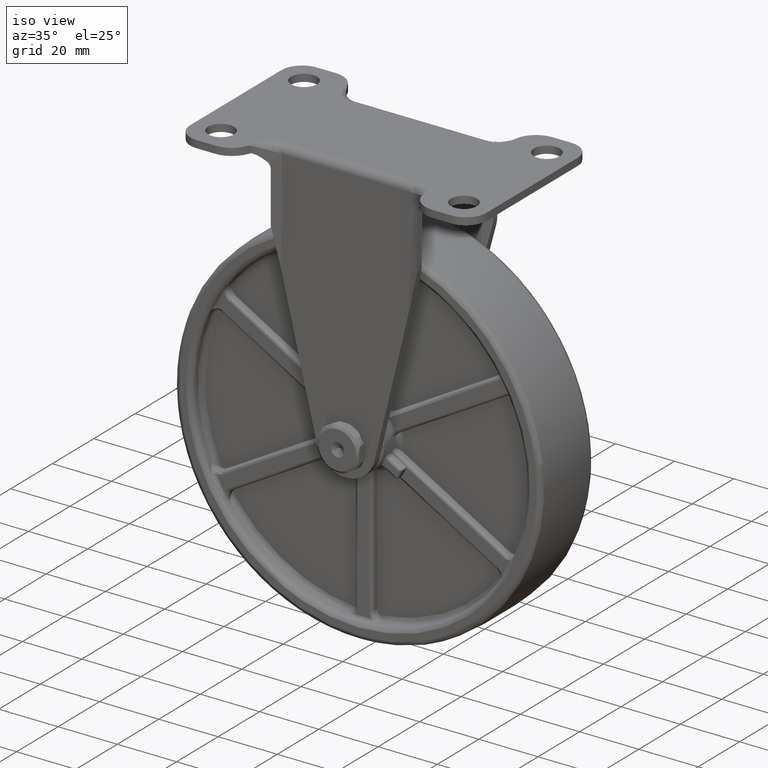
[diagram: clean part render]
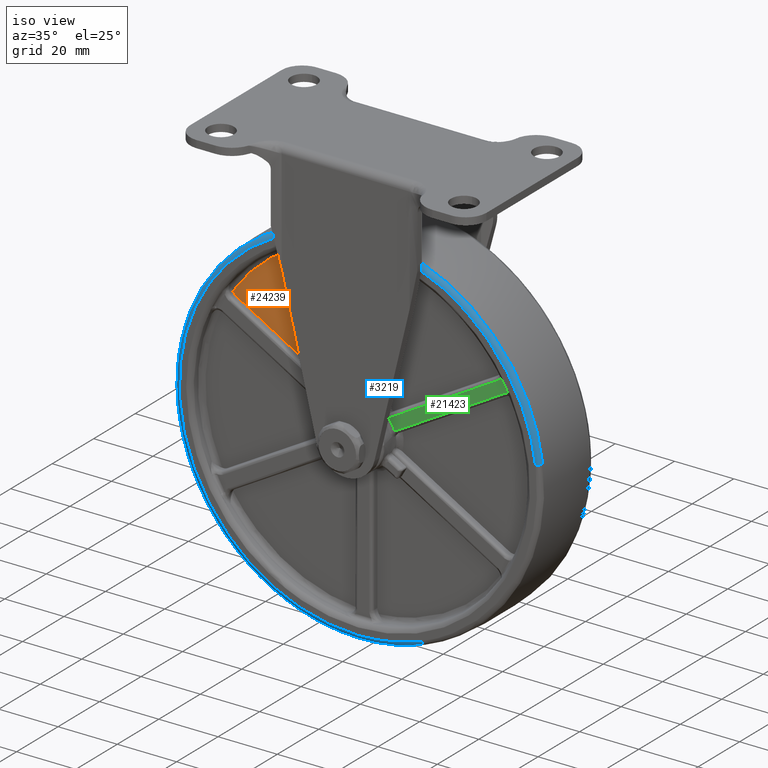
[diagram: same view with three faces highlighted in distinct colors, each labeled with its STEP entity id]
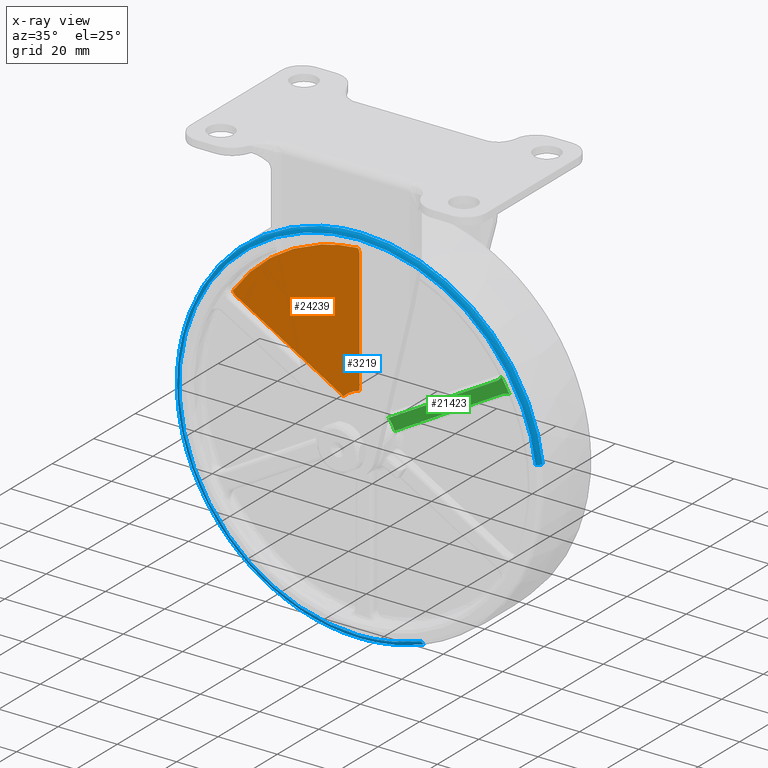
[diagram: x-ray of the same camera — body ghosted, the three highlighted faces saturated]
A machine part, iso view with three faces highlighted in distinct colors.
The next image is the same camera in x-ray (body ghosted, the three faces saturated) — at least one of them is partly hidden behind the body in this view.
Their STEP definitions:

[orange] entity #24239 — the highlighted face is a freeform B-spline surface patch.
#20823=CARTESIAN_POINT('',(-47.453841374332612,-7.500000000000000,-75.155070791705199));
#20824=VERTEX_POINT('',#20823);
#20836=CARTESIAN_POINT('',(-83.546430423103388,-7.500000000000000,-54.317004788646798));
#20837=VERTEX_POINT('',#20836);
#20838=CARTESIAN_POINT('',(-83.546430423103388,-7.500000000000000,-54.317004788646798));
#20839=CARTESIAN_POINT('',(-47.453841374332612,-7.500000000000000,-75.155070791705199));
#20840=QUASI_UNIFORM_CURVE('',1,(#20838,#20839),.UNSPECIFIED.,.F.,.U.);
#20841=EDGE_CURVE('',#20837,#20824,#20840,.T.);
#20930=CARTESIAN_POINT('',(-84.766609997989789,-7.500000000000000,-52.984085911529199));
#20931=VERTEX_POINT('',#20930);
#20965=CARTESIAN_POINT('',(-84.766609997989860,-7.500000000000000,-52.984085911529228));
#20966=CARTESIAN_POINT('',(-84.367017501177230,-7.500000000000000,-53.843238618227346));
#20967=CARTESIAN_POINT('',(-83.546430423103388,-7.500000000000000,-54.317004788646813));
#20975=(BOUNDED_CURVE()B_SPLINE_CURVE(2,(#20965,#20966,#20967),.UNSPECIFIED.,.F.,.U.)CURVE()GEOMETRIC_REPRESENTATION_ITEM()QUASI_UNIFORM_CURVE()RATIONAL_B_SPLINE_CURVE((1.0,0.953567702427362,1.0))REPRESENTATION_ITEM(''));
#20976=EDGE_CURVE('',#20931,#20837,#20975,.T.);
#21000=CARTESIAN_POINT('',(-42.0,-7.500000000000000,-72.006294006116804));
#21001=VERTEX_POINT('',#21000);
#21017=CARTESIAN_POINT('',(-42.0,-7.500000000000000,-30.330162000000001));
#21018=VERTEX_POINT('',#21017);
#21024=CARTESIAN_POINT('',(-42.0,-7.500000000000000,-72.006294006116804));
#21025=CARTESIAN_POINT('',(-42.0,-7.500000000000000,-30.330162000000001));
#21026=QUASI_UNIFORM_CURVE('',1,(#21024,#21025),.UNSPECIFIED.,.F.,.U.);
#21027=EDGE_CURVE('',#21001,#21018,#21026,.T.);
#21086=CARTESIAN_POINT('',(-42.544251821324501,-7.500000000000000,-28.606996052410651));
#21087=VERTEX_POINT('',#21086);
#21122=CARTESIAN_POINT('',(-41.999999999999993,-7.500000000000000,-30.330162000000001));
#21123=CARTESIAN_POINT('',(-42.0,-7.500000000000000,-29.382629659161072));
#21124=CARTESIAN_POINT('',(-42.544251821324437,-7.500000000000000,-28.606996052410611));
#21132=(BOUNDED_CURVE()B_SPLINE_CURVE(2,(#21122,#21123,#21124),.UNSPECIFIED.,.F.,.U.)CURVE()GEOMETRIC_REPRESENTATION_ITEM()QUASI_UNIFORM_CURVE()RATIONAL_B_SPLINE_CURVE((1.0,0.953567702427360,1.0))REPRESENTATION_ITEM(''));
#21133=EDGE_CURVE('',#21018,#21087,#21132,.T.);
#24025=CARTESIAN_POINT('',(-84.766609997989761,-7.500000000000000,-52.984085911529263));
#24026=CARTESIAN_POINT('',(-69.680903676458300,-7.500000000000001,-30.359116010247828));
#24027=CARTESIAN_POINT('',(-42.544251821324544,-7.500000000000000,-28.606996052410629));
#24035=(BOUNDED_CURVE()B_SPLINE_CURVE(2,(#24025,#24026,#24027),.UNSPECIFIED.,.F.,.U.)CURVE()GEOMETRIC_REPRESENTATION_ITEM()QUASI_UNIFORM_CURVE()RATIONAL_B_SPLINE_CURVE((1.0,0.896442060182990,1.0))REPRESENTATION_ITEM(''));
#24036=EDGE_CURVE('',#20931,#21087,#24035,.T.);
#24214=CARTESIAN_POINT('',(-86.902801281574710,-7.500000000000000,-77.480143539033591));
#24215=CARTESIAN_POINT('',(-86.902801281574710,-7.500000000000000,-26.281918727187840));
#24216=CARTESIAN_POINT('',(-39.863806804598617,-7.500000000000000,-77.480143539033591));
#24217=CARTESIAN_POINT('',(-39.863806804598617,-7.500000000000000,-26.281918727187840));
#24218=B_SPLINE_SURFACE_WITH_KNOTS('',1,1,((#24214,#24216),(#24215,#24217)),.UNSPECIFIED.,.F.,.F.,.U.,(2,2),(2,2),(0.0,51.198224811845748),(0.0,47.038994476976093),.UNSPECIFIED.);
#24219=ORIENTED_EDGE('',*,*,#24036,.F.);
#24220=ORIENTED_EDGE('',*,*,#20976,.T.);
#24221=ORIENTED_EDGE('',*,*,#20841,.T.);
#24222=CARTESIAN_POINT('',(-47.453841374332548,-7.500000000000000,-75.155070791705256));
#24223=CARTESIAN_POINT('',(-45.159735972511477,-7.500000000000000,-72.831024334400709));
#24224=CARTESIAN_POINT('',(-42.000000000000007,-7.500000000000000,-72.006294006116761));
#24232=(BOUNDED_CURVE()B_SPLINE_CURVE(2,(#24222,#24223,#24224),.UNSPECIFIED.,.F.,.U.)CURVE()GEOMETRIC_REPRESENTATION_ITEM()QUASI_UNIFORM_CURVE()RATIONAL_B_SPLINE_CURVE((1.0,0.964227549218728,1.0))REPRESENTATION_ITEM(''));
#24233=EDGE_CURVE('',#20824,#21001,#24232,.T.);
#24234=ORIENTED_EDGE('',*,*,#24233,.T.);
#24235=ORIENTED_EDGE('',*,*,#21027,.T.);
#24236=ORIENTED_EDGE('',*,*,#21133,.T.);
#24237=EDGE_LOOP('',(#24219,#24220,#24221,#24234,#24235,#24236));
#24238=FACE_OUTER_BOUND('',#24237,.T.);
#24239=ADVANCED_FACE('',(#24238),#24218,.F.);

[blue] entity #3219 — the highlighted face is a freeform B-spline surface patch.
#3043=CARTESIAN_POINT('',(-17.652634495917525,-12.496759567170432,-139.879157105523800));
#3044=CARTESIAN_POINT('',(-24.344823468054276,-12.496759567170438,-142.413082962967910));
#3045=CARTESIAN_POINT('',(-31.444246362835109,-12.496759567170438,-143.309948644591710));
#3046=CARTESIAN_POINT('',(-91.254195007426802,-12.496759567170436,-150.865702281756570));
#3047=CARTESIAN_POINT('',(-98.809948644591699,-12.496759567170438,-91.055753637164869));
#3048=CARTESIAN_POINT('',(-106.365702281756610,-12.496759567170436,-31.245804992573213));
#3049=CARTESIAN_POINT('',(-46.555753637164898,-12.496759567170438,-23.690051355408301));
#3050=CARTESIAN_POINT('',(13.254195007426803,-12.496759567170436,-16.134297718243428));
#3051=CARTESIAN_POINT('',(20.809948644591689,-12.496759567170438,-75.944246362835102));
#3052=CARTESIAN_POINT('',(-17.112146056385040,-12.597251011171950,-141.306606438336980));
#3053=CARTESIAN_POINT('',(-23.973772834508431,-12.597251011171950,-143.904688110807540));
#3054=CARTESIAN_POINT('',(-31.252944185896137,-12.597251011171950,-144.824261303231050));
#3055=CARTESIAN_POINT('',(-92.577205489127195,-12.597251011171950,-152.571317117334930));
#3056=CARTESIAN_POINT('',(-100.324261303231070,-12.597251011171950,-91.247055814103888));
#3057=CARTESIAN_POINT('',(-108.071317117334970,-12.597251011171950,-29.922794510872809));
#3058=CARTESIAN_POINT('',(-46.747055814103881,-12.597251011171950,-22.175738696768928));
#3059=CARTESIAN_POINT('',(14.577205489127198,-12.597251011171950,-14.428682882665056));
#3060=CARTESIAN_POINT('',(22.324261303231079,-12.597251011171950,-75.752944185896112));
#3061=CARTESIAN_POINT('',(-17.087147390907440,-11.069228107362385,-141.372628809487250));
#3062=CARTESIAN_POINT('',(-23.956611004606415,-11.069228107362385,-143.973677816022620));
#3063=CARTESIAN_POINT('',(-31.244096079671014,-11.069228107362386,-144.894301275990780));
#3064=CARTESIAN_POINT('',(-92.638397355661823,-11.069228107362385,-152.650205196319770));
#3065=CARTESIAN_POINT('',(-100.394301275990810,-11.069228107362386,-91.255903920329004));
#3066=CARTESIAN_POINT('',(-108.150205196319800,-11.069228107362385,-29.861602644338177));
#3067=CARTESIAN_POINT('',(-46.755903920329004,-11.069228107362386,-22.105698724009176));
#3068=CARTESIAN_POINT('',(14.638397355661821,-11.069228107362385,-14.349794803680185));
#3069=CARTESIAN_POINT('',(22.394301275990820,-11.069228107362386,-75.744096079670996));
#3077=(BOUNDED_SURFACE()B_SPLINE_SURFACE(2,2,((#3043,#3052,#3061),(#3044,#3053,#3062),(#3045,#3054,#3063),(#3046,#3055,#3064),(#3047,#3056,#3065),(#3048,#3057,#3066),(#3049,#3058,#3067),(#3050,#3059,#3068),(#3051,#3060,#3069)),.UNSPECIFIED.,.F.,.F.,.U.)B_SPLINE_SURFACE_WITH_KNOTS((3,2,2,2,3),(3,3),(0.0,16.404782040458450,118.934669793323710,221.464557546189010,323.994445299054180),(0.0,2.519750840685477),.UNSPECIFIED.)GEOMETRIC_REPRESENTATION_ITEM()RATIONAL_B_SPLINE_SURFACE(((0.840305074498585,0.588488147624079,0.840723684815145),(0.869371265729880,0.608843979756116,0.869804355796572),(0.912115664599432,0.638779027009112,0.912570048416316),(0.644963171664733,0.451684981677888,0.645284469542913),(0.912115664599432,0.638779027009112,0.912570048416316),(0.644963171664733,0.451684981677888,0.645284469542913),(0.912115664599432,0.638779027009112,0.912570048416316),(0.644963171664733,0.451684981677888,0.645284469542913),(0.912115664599432,0.638779027009112,0.912570048416316)))REPRESENTATION_ITEM('')SURFACE());
#3078=CARTESIAN_POINT('',(-17.089902011477790,-11.167463116625809,-141.365353757789310));
#3079=VERTEX_POINT('',#3078);
#3080=CARTESIAN_POINT('',(-39.0,-11.167461436119931,-145.374482665672900));
#3081=VERTEX_POINT('',#3080);
#3082=CARTESIAN_POINT('',(-17.089902011477790,-11.167463116625814,-141.365353757789310));
#3083=CARTESIAN_POINT('',(-27.678154081487826,-11.167461436119934,-145.374482665672840));
#3084=CARTESIAN_POINT('',(-39.0,-11.167461436119931,-145.374482665672900));
#3092=(BOUNDED_CURVE()B_SPLINE_CURVE(2,(#3082,#3083,#3084),.UNSPECIFIED.,.F.,.U.)B_SPLINE_CURVE_WITH_KNOTS((3,3),(0.439864361348142,0.500000000000000),.UNSPECIFIED.)CURVE()GEOMETRIC_REPRESENTATION_ITEM()RATIONAL_B_SPLINE_CURVE((0.892987459224204,0.929546716919418,1.0))REPRESENTATION_ITEM(''));
#3093=EDGE_CURVE('',#3079,#3081,#3092,.T.);
#3094=ORIENTED_EDGE('',*,*,#3093,.F.);
#3095=CARTESIAN_POINT('',(-17.617740351081000,-12.499999999999510,-139.971313791735210));
#3096=VERTEX_POINT('',#3095);
#3097=CARTESIAN_POINT('',(-17.617740351081004,-12.499999999999510,-139.971313791735210));
#3098=CARTESIAN_POINT('',(-17.142912699741711,-12.500001535422754,-141.225350630959550));
#3099=CARTESIAN_POINT('',(-17.089902011477793,-11.167463116625814,-141.365353757789280));
#3107=(BOUNDED_CURVE()B_SPLINE_CURVE(2,(#3097,#3098,#3099),.UNSPECIFIED.,.F.,.U.)B_SPLINE_CURVE_WITH_KNOTS((3,3),(-1.709106951313920,-0.289592877624982),.UNSPECIFIED.)CURVE()GEOMETRIC_REPRESENTATION_ITEM()RATIONAL_B_SPLINE_CURVE((0.818471448125099,0.610340272396888,0.818853063523301))REPRESENTATION_ITEM(''));
#3108=EDGE_CURVE('',#3096,#3079,#3107,.T.);
#3109=ORIENTED_EDGE('',*,*,#3108,.F.);
#3110=CARTESIAN_POINT('',(-39.0,-12.500000000000000,-143.883858000000000));
#3111=VERTEX_POINT('',#3110);
#3112=CARTESIAN_POINT('',(-17.617740351080997,-12.499999999999512,-139.971313791735300));
#3113=CARTESIAN_POINT('',(-27.950909828119521,-12.500000000000002,-143.883858000000030));
#3114=CARTESIAN_POINT('',(-39.0,-12.500000000000000,-143.883858000000000));
#3122=(BOUNDED_CURVE()B_SPLINE_CURVE(2,(#3112,#3113,#3114),.UNSPECIFIED.,.F.,.U.)B_SPLINE_CURVE_WITH_KNOTS((3,3),(0.439864366382441,0.500000000000000),.UNSPECIFIED.)CURVE()GEOMETRIC_REPRESENTATION_ITEM()RATIONAL_B_SPLINE_CURVE((0.892987465345374,0.929546722817466,1.0))REPRESENTATION_ITEM(''));
#3123=EDGE_CURVE('',#3096,#3111,#3122,.T.);
#3124=ORIENTED_EDGE('',*,*,#3123,.T.);
#3125=CARTESIAN_POINT('',(-39.0,-12.500000000000000,-23.116142000000011));
#3126=VERTEX_POINT('',#3125);
#3127=CARTESIAN_POINT('',(-39.0,-12.500000000000000,-143.883858000000000));
#3128=CARTESIAN_POINT('',(-99.383857999999975,-12.499999999999998,-143.883858000000030));
#3129=CARTESIAN_POINT('',(-99.383857999999989,-12.500000000000000,-83.500000000000000));
#3130=CARTESIAN_POINT('',(-99.383857999999975,-12.499999999999998,-23.116142000000014));
#3131=CARTESIAN_POINT('',(-39.0,-12.500000000000000,-23.116142000000011));
#3139=(BOUNDED_CURVE()B_SPLINE_CURVE(2,(#3127,#3128,#3129,#3130,#3131),.UNSPECIFIED.,.F.,.U.)B_SPLINE_CURVE_WITH_KNOTS((3,2,3),(0.500000000000000,0.750000000000000,1.0),.UNSPECIFIED.)CURVE()GEOMETRIC_REPRESENTATION_ITEM()RATIONAL_B_SPLINE_CURVE((1.0,0.707106781186547,1.0,0.707106781186547,1.0))REPRESENTATION_ITEM(''));
#3140=EDGE_CURVE('',#3111,#3126,#3139,.T.);
#3141=ORIENTED_EDGE('',*,*,#3140,.T.);
#3142=CARTESIAN_POINT('',(20.907713279541149,-12.499999999999529,-75.931895816665886));
#3143=VERTEX_POINT('',#3142);
#3144=CARTESIAN_POINT('',(-39.0,-12.500000000000000,-23.116142000000011));
#3145=CARTESIAN_POINT('',(14.235531890357189,-12.500000000000000,-23.116142000000011));
#3146=CARTESIAN_POINT('',(20.907713279541152,-12.499999999999529,-75.931895816665886));
#3154=(BOUNDED_CURVE()B_SPLINE_CURVE(2,(#3144,#3145,#3146),.UNSPECIFIED.,.F.,.U.)B_SPLINE_CURVE_WITH_KNOTS((3,3),(0.0,0.228321256478211),.UNSPECIFIED.)CURVE()GEOMETRIC_REPRESENTATION_ITEM()RATIONAL_B_SPLINE_CURVE((1.0,0.732505009066260,0.953608357585473))REPRESENTATION_ITEM(''));
#3155=EDGE_CURVE('',#3126,#3143,#3154,.T.);
#3156=ORIENTED_EDGE('',*,*,#3155,.T.);
#3157=CARTESIAN_POINT('',(22.386579249739562,-11.167490432609430,-75.745071598407378));
#3158=VERTEX_POINT('',#3157);
#3159=CARTESIAN_POINT('',(20.907713279541156,-12.499999999999527,-75.931895816665886));
#3160=CARTESIAN_POINT('',(22.238035543455862,-12.500001423378881,-75.763837032213402));
#3161=CARTESIAN_POINT('',(22.386579249739565,-11.167490432609434,-75.745071598407378));
#3169=(BOUNDED_CURVE()B_SPLINE_CURVE(2,(#3159,#3160,#3161),.UNSPECIFIED.,.F.,.U.)B_SPLINE_CURVE_WITH_KNOTS((3,3),(-1.709106924805635,-0.289612495700798),.UNSPECIFIED.)CURVE()GEOMETRIC_REPRESENTATION_ITEM()RATIONAL_B_SPLINE_CURVE((0.888416176967087,0.662501711904864,0.888824156950272))REPRESENTATION_ITEM(''));
#3170=EDGE_CURVE('',#3143,#3158,#3169,.T.);
#3171=ORIENTED_EDGE('',*,*,#3170,.T.);
#3172=CARTESIAN_POINT('',(-39.0,-11.167512690355361,-21.625523094152800));
#3173=VERTEX_POINT('',#3172);
#3174=CARTESIAN_POINT('',(-39.0,-11.167512690355361,-21.625523094152800));
#3175=CARTESIAN_POINT('',(15.549687706406186,-11.167512769075975,-21.625523006446695));
#3176=CARTESIAN_POINT('',(22.386579249739565,-11.167490432609435,-75.745071598407378));
#3184=(BOUNDED_CURVE()B_SPLINE_CURVE(2,(#3174,#3175,#3176),.UNSPECIFIED.,.F.,.U.)B_SPLINE_CURVE_WITH_KNOTS((3,3),(0.0,0.228321249672688),.UNSPECIFIED.)CURVE()GEOMETRIC_REPRESENTATION_ITEM()RATIONAL_B_SPLINE_CURVE((1.0,0.732505017039426,0.953608344404713))REPRESENTATION_ITEM(''));
#3185=EDGE_CURVE('',#3173,#3158,#3184,.T.);
#3186=ORIENTED_EDGE('',*,*,#3185,.F.);
#3187=CARTESIAN_POINT('',(-100.460645885947200,-11.167470277427320,-90.644262696319856));
#3188=VERTEX_POINT('',#3187);
#3189=CARTESIAN_POINT('',(-100.460645885947200,-11.167470277427322,-90.644262696319856));
#3190=CARTESIAN_POINT('',(-100.874481518123010,-11.167471371305485,-87.084117453717084));
#3191=CARTESIAN_POINT('',(-100.874481381002100,-11.167472599702879,-83.500000520197631));
#3192=CARTESIAN_POINT('',(-100.874479013811590,-11.167493806166904,-21.625523339185232));
#3193=CARTESIAN_POINT('',(-39.0,-11.167512690355361,-21.625523094152800));
#3201=(BOUNDED_CURVE()B_SPLINE_CURVE(2,(#3189,#3190,#3191,#3192,#3193),.UNSPECIFIED.,.F.,.U.)B_SPLINE_CURVE_WITH_KNOTS((3,2,3),(0.730000073333649,0.750000000000000,1.0),.UNSPECIFIED.)CURVE()GEOMETRIC_REPRESENTATION_ITEM()RATIONAL_B_SPLINE_CURVE((0.956886262529110,0.976568628410638,1.0,0.707106781186548,1.0))REPRESENTATION_ITEM(''));
#3202=EDGE_CURVE('',#3188,#3173,#3201,.T.);
#3203=ORIENTED_EDGE('',*,*,#3202,.F.);
#3204=CARTESIAN_POINT('',(-39.0,-11.167461436119931,-145.374482665672900));
#3205=CARTESIAN_POINT('',(-94.098734592579504,-11.167465856773626,-145.374480060925290));
#3206=CARTESIAN_POINT('',(-100.460645885947200,-11.167470277427322,-90.644262696319856));
#3214=(BOUNDED_CURVE()B_SPLINE_CURVE(2,(#3204,#3205,#3206),.UNSPECIFIED.,.F.,.U.)B_SPLINE_CURVE_WITH_KNOTS((3,3),(0.500000000000000,0.730000073333649),.UNSPECIFIED.)CURVE()GEOMETRIC_REPRESENTATION_ITEM()RATIONAL_B_SPLINE_CURVE((1.0,0.730538152775910,0.956886262529110))REPRESENTATION_ITEM(''));
#3215=EDGE_CURVE('',#3081,#3188,#3214,.T.);
#3216=ORIENTED_EDGE('',*,*,#3215,.F.);
#3217=EDGE_LOOP('',(#3094,#3109,#3124,#3141,#3156,#3171,#3186,#3203,#3216));
#3218=FACE_OUTER_BOUND('',#3217,.T.);
#3219=ADVANCED_FACE('',(#3218),#3077,.T.);

[green] entity #21423 — the highlighted face is a freeform B-spline surface patch.
#10856=CARTESIAN_POINT('',(-30.431203841043200,-10.0,-76.243402154236591));
#10857=VERTEX_POINT('',#10856);
#10920=CARTESIAN_POINT('',(-28.431203841043150,-10.0,-79.707503769374298));
#10921=VERTEX_POINT('',#10920);
#10935=CARTESIAN_POINT('',(-30.431203841043139,-10.0,-76.243402154236549));
#10936=CARTESIAN_POINT('',(-29.117684778648641,-10.0,-77.794442646735874));
#10937=CARTESIAN_POINT('',(-28.431203841043089,-10.0,-79.707503769374270));
#10945=(BOUNDED_CURVE()B_SPLINE_CURVE(2,(#10935,#10936,#10937),.UNSPECIFIED.,.F.,.U.)CURVE()GEOMETRIC_REPRESENTATION_ITEM()QUASI_UNIFORM_CURVE()RATIONAL_B_SPLINE_CURVE((1.0,0.984009520121508,1.0))REPRESENTATION_ITEM(''));
#10946=EDGE_CURVE('',#10857,#10921,#10945,.T.);
#16508=CARTESIAN_POINT('',(10.367252550548800,-10.0,-58.124120035487501));
#16509=VERTEX_POINT('',#16508);
#16598=CARTESIAN_POINT('',(7.659782967926669,-10.0,-53.434645158438698));
#16599=VERTEX_POINT('',#16598);
#16613=CARTESIAN_POINT('',(10.367252550548891,-10.0,-58.124120035487472));
#16614=CARTESIAN_POINT('',(9.128022880132848,-10.0,-55.713273034590671));
#16615=CARTESIAN_POINT('',(7.659782967926749,-10.0,-53.434645158438627));
#16623=(BOUNDED_CURVE()B_SPLINE_CURVE(2,(#16613,#16614,#16615),.UNSPECIFIED.,.F.,.U.)CURVE()GEOMETRIC_REPRESENTATION_ITEM()QUASI_UNIFORM_CURVE()RATIONAL_B_SPLINE_CURVE((1.0,0.998809702724240,1.0))REPRESENTATION_ITEM(''));
#16624=EDGE_CURVE('',#16509,#16599,#16623,.T.);
#19457=CARTESIAN_POINT('',(8.046430423103020,-10.0,-58.647131807568812));
#19458=VERTEX_POINT('',#19457);
#19459=CARTESIAN_POINT('',(8.046430423102997,-10.0,-58.647131807568762));
#19460=CARTESIAN_POINT('',(9.125390522575307,-10.0,-58.024193903693551));
#19461=CARTESIAN_POINT('',(10.367252550548800,-10.0,-58.124120035487472));
#19469=(BOUNDED_CURVE()B_SPLINE_CURVE(2,(#19459,#19460,#19461),.UNSPECIFIED.,.F.,.U.)CURVE()GEOMETRIC_REPRESENTATION_ITEM()QUASI_UNIFORM_CURVE()RATIONAL_B_SPLINE_CURVE((1.0,0.954759813865364,1.0))REPRESENTATION_ITEM(''));
#19470=EDGE_CURVE('',#19458,#16509,#19469,.T.);
#19502=CARTESIAN_POINT('',(-28.431203841043150,-10.0,-79.707503769374298));
#19503=CARTESIAN_POINT('',(8.046430423103020,-10.0,-58.647131807568812));
#19504=QUASI_UNIFORM_CURVE('',1,(#19502,#19503),.UNSPECIFIED.,.F.,.U.);
#19505=EDGE_CURVE('',#10921,#19458,#19504,.T.);
#19539=CARTESIAN_POINT('',(6.046430423103090,-10.0,-55.183030192431097));
#19540=VERTEX_POINT('',#19539);
#19541=CARTESIAN_POINT('',(6.046430423103090,-10.0,-55.183030192431097));
#19542=CARTESIAN_POINT('',(-30.431203841043200,-10.0,-76.243402154236591));
#19543=QUASI_UNIFORM_CURVE('',1,(#19541,#19542),.UNSPECIFIED.,.F.,.U.);
#19544=EDGE_CURVE('',#19540,#10857,#19543,.T.);
#19579=CARTESIAN_POINT('',(7.659782967926677,-10.0,-53.434645158438698));
#19580=CARTESIAN_POINT('',(7.125390522575396,-9.999999999999998,-54.560092288555943));
#19581=CARTESIAN_POINT('',(6.046430423103113,-10.0,-55.183030192431140));
#19589=(BOUNDED_CURVE()B_SPLINE_CURVE(2,(#19579,#19580,#19581),.UNSPECIFIED.,.F.,.U.)CURVE()GEOMETRIC_REPRESENTATION_ITEM()QUASI_UNIFORM_CURVE()RATIONAL_B_SPLINE_CURVE((1.0,0.954759813865366,1.0))REPRESENTATION_ITEM(''));
#19590=EDGE_CURVE('',#16599,#19540,#19589,.T.);
#21410=CARTESIAN_POINT('',(-32.469086658727889,-10.0,-81.019833405465121));
#21411=CARTESIAN_POINT('',(12.405136462533370,-10.0,-81.019833405465121));
#21412=CARTESIAN_POINT('',(-32.469086658727889,-10.0,-52.122317166631497));
#21413=CARTESIAN_POINT('',(12.405136462533370,-10.0,-52.122317166631497));
#21414=B_SPLINE_SURFACE_WITH_KNOTS('',1,1,((#21410,#21412),(#21411,#21413)),.UNSPECIFIED.,.F.,.F.,.U.,(2,2),(2,2),(0.0,44.874223121261259),(0.0,28.897516238833621),.UNSPECIFIED.);
#21415=ORIENTED_EDGE('',*,*,#19544,.T.);
#21416=ORIENTED_EDGE('',*,*,#10946,.T.);
#21417=ORIENTED_EDGE('',*,*,#19505,.T.);
#21418=ORIENTED_EDGE('',*,*,#19470,.T.);
#21419=ORIENTED_EDGE('',*,*,#16624,.T.);
#21420=ORIENTED_EDGE('',*,*,#19590,.T.);
#21421=EDGE_LOOP('',(#21415,#21416,#21417,#21418,#21419,#21420));
#21422=FACE_OUTER_BOUND('',#21421,.T.);
#21423=ADVANCED_FACE('',(#21422),#21414,.T.);